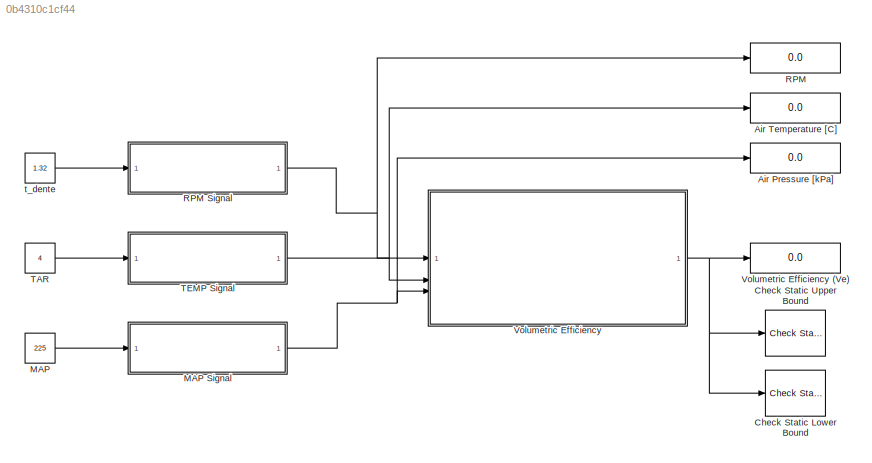
MODEL slx_0b4310c1cf44
KIND model
CONFIG AbsTol = auto
CONFIG EnableMultiTasking = off
CONFIG FixedStep = auto
CONFIG MaxStep = auto
CONFIG MinStep = auto
CONFIG RelTol = 1e-3
CONFIG SampleTimeConstraint = Unconstrained
CONFIG SolverName = VariableStepAuto
CONFIG StartTime = 0.0
CONFIG StopTime = 10.0
BLOCK [Display] Air Pressure [kPa]
  Decimation = 1
  Format = decimal (Stored Integer)
BLOCK [Display] Air Temperature [C]
  Decimation = 1
  Format = decimal (Stored Integer)
BLOCK [Reference] Check Static Lower Bound  REF=simulink/Model
Verification/Check Static 
Lower Bound
  Description = 0 < u
  SourceBlock = simulink/Model\nVerification/Check Static \nLower Bound
  SourceType = Checks_SMin
BLOCK [Reference] Check Static Upper Bound  REF=simulink/Model
Verification/Check Static 
Upper Bound
  Description = u <= 1
  SourceBlock = simulink/Model\nVerification/Check Static \nUpper Bound
  SourceType = Checks_SMax
BLOCK [Constant] MAP
  Value = 225
BLOCK [ModelReference] MAP Signal
  ModelNameDialog = sensorMAP.slx
  ModelReferenceVersion = 1.3
BLOCK [Display] RPM
  Decimation = 1
  Format = decimal (Stored Integer)
BLOCK [ModelReference] RPM Signal
  ModelNameDialog = sensorRPM.slx
  ModelReferenceVersion = 1.1
BLOCK [Constant] TAR
  Value = 4
BLOCK [ModelReference] TEMP Signal
  ModelNameDialog = sensorTemperature.slx
  ModelReferenceVersion = 1.4
BLOCK [ModelReference] Volumetric Efficiency
  ModelNameDialog = volumetricEfficiency.slx
  ModelReferenceVersion = 1.16
BLOCK [Display] Volumetric Efficiency (Ve)
  Decimation = 1
BLOCK [Constant] t_dente
  Value = 1.32
NET MAP Signal:1 -> Air Pressure [kPa]:1, Volumetric Efficiency:3
LINE MAP:1 -> MAP Signal:1
NET RPM Signal:1 -> RPM:1, Volumetric Efficiency:1
LINE TAR:1 -> TEMP Signal:1
NET TEMP Signal:1 -> Air Temperature [C]:1, Volumetric Efficiency:2
NET Volumetric Efficiency:1 -> Check Static Lower Bound:1, Check Static Upper Bound:1, Volumetric Efficiency (Ve):1
LINE t_dente:1 -> RPM Signal:1
note: NET lines group one-source signal fan-out (src -> all destinations, sorted); 1:1 wires keep LINE
